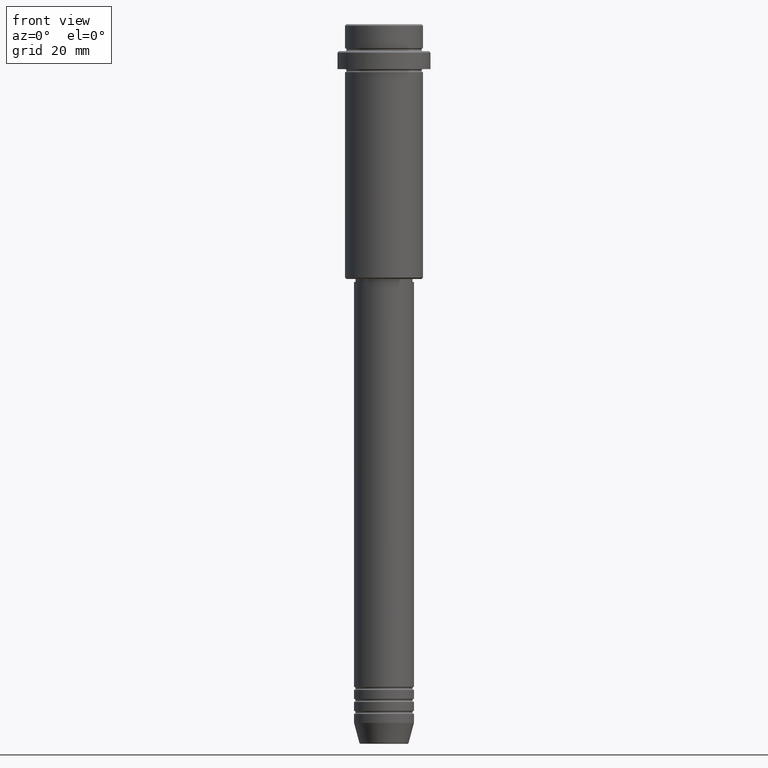
[diagram: clean part render]
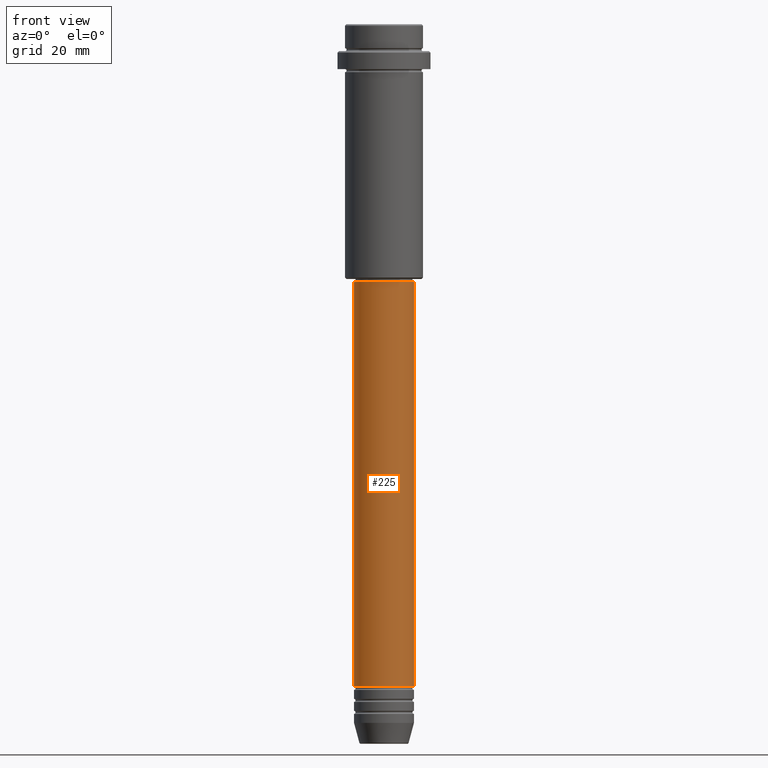
[diagram: same view with one face highlighted and labeled with its STEP entity id]
A machine part, front view. The second image highlights one B-rep face of the part: STEP entity #225.
In plain terms, the highlighted cylindrical surface (edge-blend (fillet) strip) has radius 10 mm, axis along (-0, -0, 1).
Its self-contained STEP definition (entity closure, byte-faithful):
#77 = CARTESIAN_POINT ( 'NONE',  ( 10.00000000000000178, 0.000000000000000000, -86.00000000000000000 ) ) ;
#146 = DIRECTION ( 'NONE',  ( -0.000000000000000000, -0.000000000000000000, 1.000000000000000000 ) ) ;
#183 = LINE ( 'NONE', #1033, #1146 ) ;
#211 = CARTESIAN_POINT ( 'NONE',  ( -10.00000000000000178, 1.224646799147353454E-15, 0.000000000000000000 ) ) ;
#225 = ADVANCED_FACE ( 'NONE', ( #1221 ), #1310, .T. ) ;
#254 = EDGE_CURVE ( 'NONE', #1026, #906, #605, .T. ) ;
#281 = DIRECTION ( 'NONE',  ( 1.000000000000000000, 0.000000000000000000, 0.000000000000000000 ) ) ;
#319 = ORIENTED_EDGE ( 'NONE', *, *, #1335, .T. ) ;
#348 = AXIS2_PLACEMENT_3D ( 'NONE', #994, #437, #1116 ) ;
#362 = DIRECTION ( 'NONE',  ( -0.000000000000000000, -0.000000000000000000, 1.000000000000000000 ) ) ;
#434 = ORIENTED_EDGE ( 'NONE', *, *, #1233, .F. ) ;
#437 = DIRECTION ( 'NONE',  ( -0.000000000000000000, -0.000000000000000000, 1.000000000000000000 ) ) ;
#484 = CARTESIAN_POINT ( 'NONE',  ( -10.00000000000000000, 1.224646799147353256E-15, -220.9999999999998863 ) ) ;
#489 = CIRCLE ( 'NONE', #1307, 10.00000000000000000 ) ;
#494 = VERTEX_POINT ( 'NONE', #535 ) ;
#520 = ORIENTED_EDGE ( 'NONE', *, *, #254, .F. ) ;
#535 = CARTESIAN_POINT ( 'NONE',  ( 10.00000000000000000, 0.000000000000000000, -220.9999999999998863 ) ) ;
#563 = CARTESIAN_POINT ( 'NONE',  ( 0.000000000000000000, 0.000000000000000000, -86.00000000000000000 ) ) ;
#575 = EDGE_LOOP ( 'NONE', ( #434, #1064, #319, #520 ) ) ;
#605 = CIRCLE ( 'NONE', #1169, 10.00000000000000178 ) ;
#661 = LINE ( 'NONE', #211, #1196 ) ;
#739 = DIRECTION ( 'NONE',  ( -0.000000000000000000, -0.000000000000000000, 1.000000000000000000 ) ) ;
#790 = DIRECTION ( 'NONE',  ( 1.000000000000000000, 0.000000000000000000, 0.000000000000000000 ) ) ;
#902 = VERTEX_POINT ( 'NONE', #484 ) ;
#906 = VERTEX_POINT ( 'NONE', #77 ) ;
#907 = EDGE_CURVE ( 'NONE', #902, #494, #489, .T. ) ;
#994 = CARTESIAN_POINT ( 'NONE',  ( 0.000000000000000000, 0.000000000000000000, 0.000000000000000000 ) ) ;
#1026 = VERTEX_POINT ( 'NONE', #1303 ) ;
#1033 = CARTESIAN_POINT ( 'NONE',  ( 10.00000000000000178, 0.000000000000000000, 0.000000000000000000 ) ) ;
#1064 = ORIENTED_EDGE ( 'NONE', *, *, #907, .T. ) ;
#1108 = DIRECTION ( 'NONE',  ( -0.000000000000000000, -0.000000000000000000, 1.000000000000000000 ) ) ;
#1116 = DIRECTION ( 'NONE',  ( 1.000000000000000000, 0.000000000000000000, 0.000000000000000000 ) ) ;
#1146 = VECTOR ( 'NONE', #362, 1000.000000000000000 ) ;
#1169 = AXIS2_PLACEMENT_3D ( 'NONE', #563, #146, #790 ) ;
#1196 = VECTOR ( 'NONE', #1108, 1000.000000000000000 ) ;
#1221 = FACE_OUTER_BOUND ( 'NONE', #575, .T. ) ;
#1233 = EDGE_CURVE ( 'NONE', #902, #1026, #661, .T. ) ;
#1292 = CARTESIAN_POINT ( 'NONE',  ( 0.000000000000000000, 0.000000000000000000, -220.9999999999998863 ) ) ;
#1303 = CARTESIAN_POINT ( 'NONE',  ( -10.00000000000000178, 1.224646799147353454E-15, -86.00000000000000000 ) ) ;
#1307 = AXIS2_PLACEMENT_3D ( 'NONE', #1292, #739, #281 ) ;
#1310 = CYLINDRICAL_SURFACE ( 'NONE', #348, 10.00000000000000178 ) ;
#1335 = EDGE_CURVE ( 'NONE', #494, #906, #183, .T. ) ;